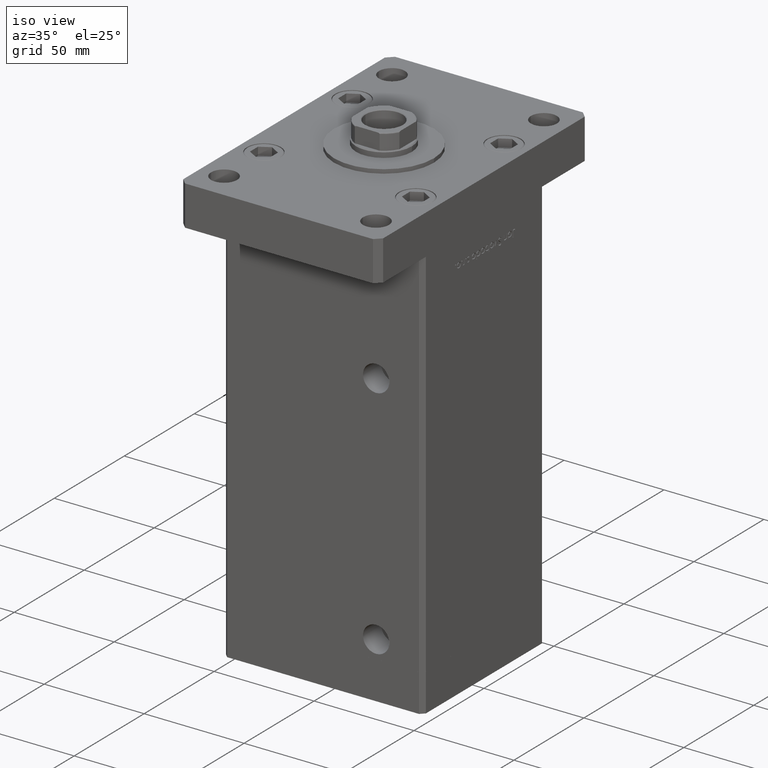
[diagram: clean part render]
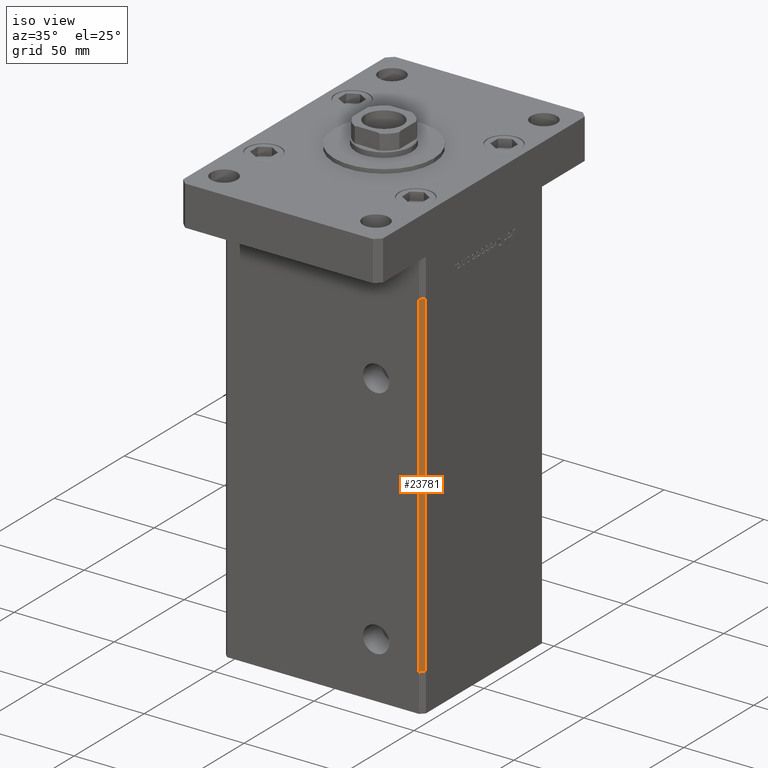
[diagram: same view with one face highlighted and labeled with its STEP entity id]
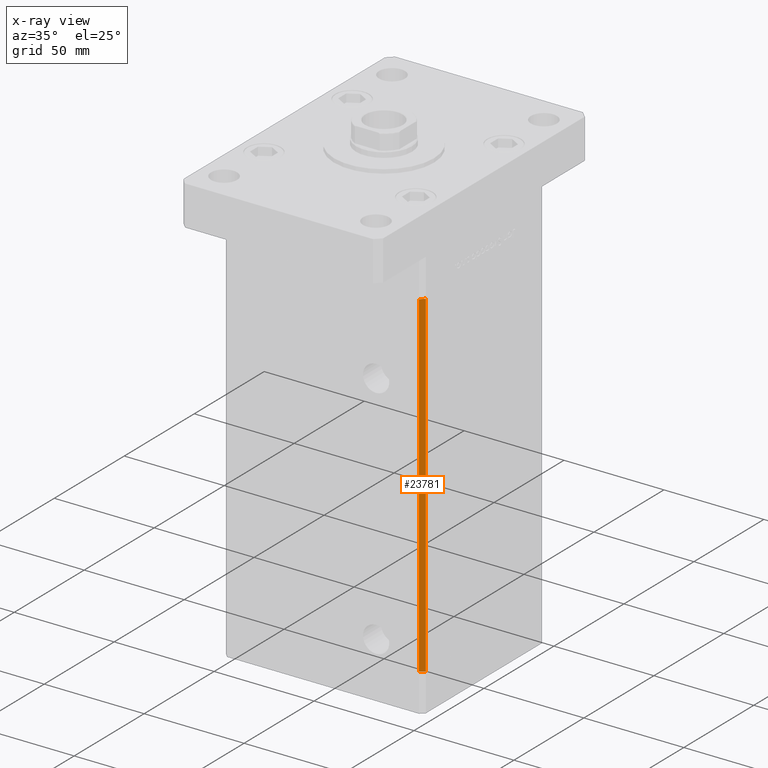
[diagram: x-ray of the same camera — body ghosted, the highlighted face saturated]
A machine part, iso view. The second image highlights one B-rep face of the part: STEP entity #23781.
The next image is the same camera in x-ray: the body ghosted, the highlighted face saturated — about 0% of this face is hidden behind the body in this view.
In plain terms, the highlighted planar face has unit normal (0.7071, -0.7071, 0).
Its self-contained STEP definition (entity closure, byte-faithful):
#2122 = VERTEX_POINT ( 'NONE', #32869 ) ;
#2294 = VECTOR ( 'NONE', #23712, 1000.000000000000114 ) ;
#4287 = LINE ( 'NONE', #37553, #8837 ) ;
#5330 = DIRECTION ( 'NONE',  ( -0.000000000000000000, -0.000000000000000000, -1.000000000000000000 ) ) ;
#5908 = EDGE_CURVE ( 'NONE', #2122, #42431, #41406, .T. ) ;
#8542 = CARTESIAN_POINT ( 'NONE',  ( 47.99999999999998579, -43.50000000000000000, 168.5000000000000000 ) ) ;
#8837 = VECTOR ( 'NONE', #16814, 1000.000000000000114 ) ;
#10953 = PLANE ( 'NONE',  #26140 ) ;
#14777 = DIRECTION ( 'NONE',  ( 0.7071067811865474617, 0.7071067811865474617, 0.000000000000000000 ) ) ;
#15113 = VERTEX_POINT ( 'NONE', #8542 ) ;
#15586 = DIRECTION ( 'NONE',  ( 0.7071067811865475727, -0.7071067811865475727, 0.000000000000000000 ) ) ;
#16814 = DIRECTION ( 'NONE',  ( -0.7071067811865474617, -0.7071067811865474617, 0.000000000000000000 ) ) ;
#17860 = LINE ( 'NONE', #25796, #48394 ) ;
#20552 = EDGE_LOOP ( 'NONE', ( #27873, #33022, #41394, #49675 ) ) ;
#23333 = CARTESIAN_POINT ( 'NONE',  ( 47.99999999999998579, -43.50000000000000000, 0.000000000000000000 ) ) ;
#23712 = DIRECTION ( 'NONE',  ( -0.7071067811865474617, -0.7071067811865474617, 0.000000000000000000 ) ) ;
#23781 = ADVANCED_FACE ( 'NONE', ( #52692 ), #10953, .T. ) ;
#24749 = VECTOR ( 'NONE', #39959, 1000.000000000000000 ) ;
#25796 = CARTESIAN_POINT ( 'NONE',  ( 47.99999999999998579, -43.50000000000000000, 168.5000000000000000 ) ) ;
#26140 = AXIS2_PLACEMENT_3D ( 'NONE', #27598, #15586, #14777 ) ;
#27356 = CARTESIAN_POINT ( 'NONE',  ( 49.99999999999998579, -41.49999999999999289, 168.5000000000000000 ) ) ;
#27598 = CARTESIAN_POINT ( 'NONE',  ( 49.99999999999998579, -41.49999999999999289, 168.5000000000000000 ) ) ;
#27697 = LINE ( 'NONE', #40226, #24749 ) ;
#27873 = ORIENTED_EDGE ( 'NONE', *, *, #5908, .F. ) ;
#28606 = CARTESIAN_POINT ( 'NONE',  ( 49.99999999999998579, -41.49999999999999289, 0.000000000000000000 ) ) ;
#29208 = EDGE_CURVE ( 'NONE', #30563, #15113, #4287, .T. ) ;
#30563 = VERTEX_POINT ( 'NONE', #27356 ) ;
#32869 = CARTESIAN_POINT ( 'NONE',  ( 49.99999999999998579, -41.49999999999999289, 0.000000000000000000 ) ) ;
#33022 = ORIENTED_EDGE ( 'NONE', *, *, #39893, .F. ) ;
#37553 = CARTESIAN_POINT ( 'NONE',  ( 49.99999999999998579, -41.49999999999999289, 168.5000000000000000 ) ) ;
#39893 = EDGE_CURVE ( 'NONE', #30563, #2122, #27697, .T. ) ;
#39959 = DIRECTION ( 'NONE',  ( -0.000000000000000000, -0.000000000000000000, -1.000000000000000000 ) ) ;
#40226 = CARTESIAN_POINT ( 'NONE',  ( 49.99999999999998579, -41.49999999999999289, 168.5000000000000000 ) ) ;
#41394 = ORIENTED_EDGE ( 'NONE', *, *, #29208, .T. ) ;
#41406 = LINE ( 'NONE', #28606, #2294 ) ;
#42431 = VERTEX_POINT ( 'NONE', #23333 ) ;
#45162 = EDGE_CURVE ( 'NONE', #15113, #42431, #17860, .T. ) ;
#48394 = VECTOR ( 'NONE', #5330, 1000.000000000000000 ) ;
#49675 = ORIENTED_EDGE ( 'NONE', *, *, #45162, .T. ) ;
#52692 = FACE_OUTER_BOUND ( 'NONE', #20552, .T. ) ;